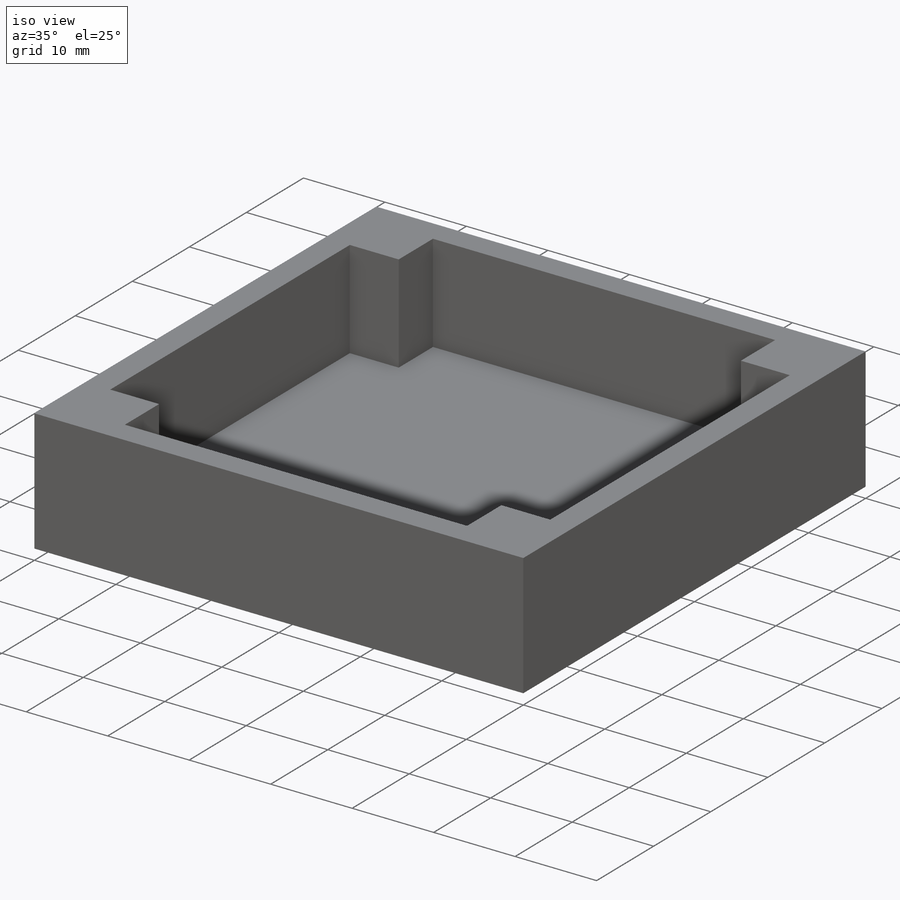
[diagram: iso view]
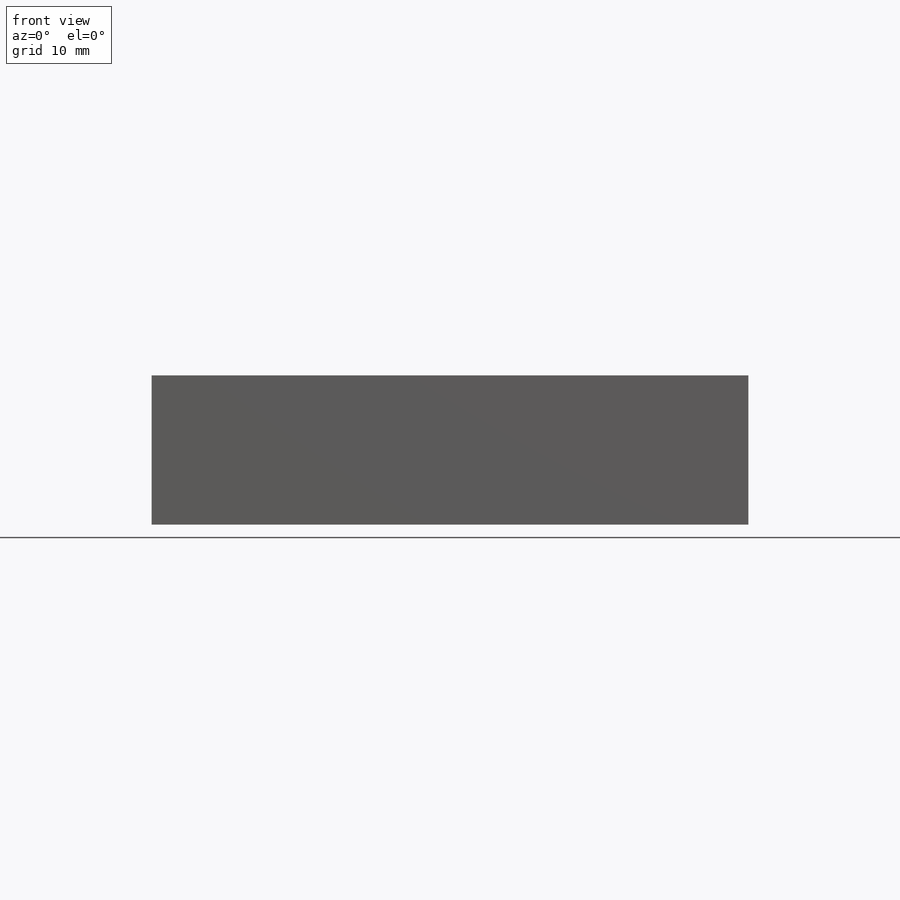
[diagram: front view]
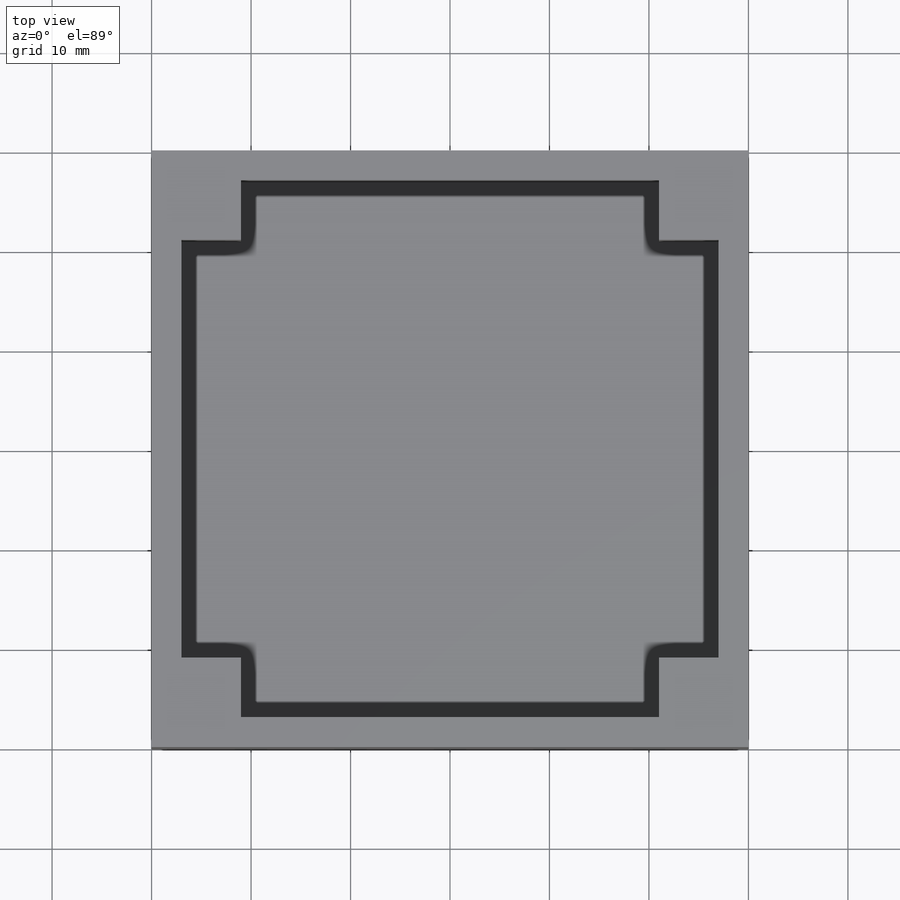
[diagram: top view]
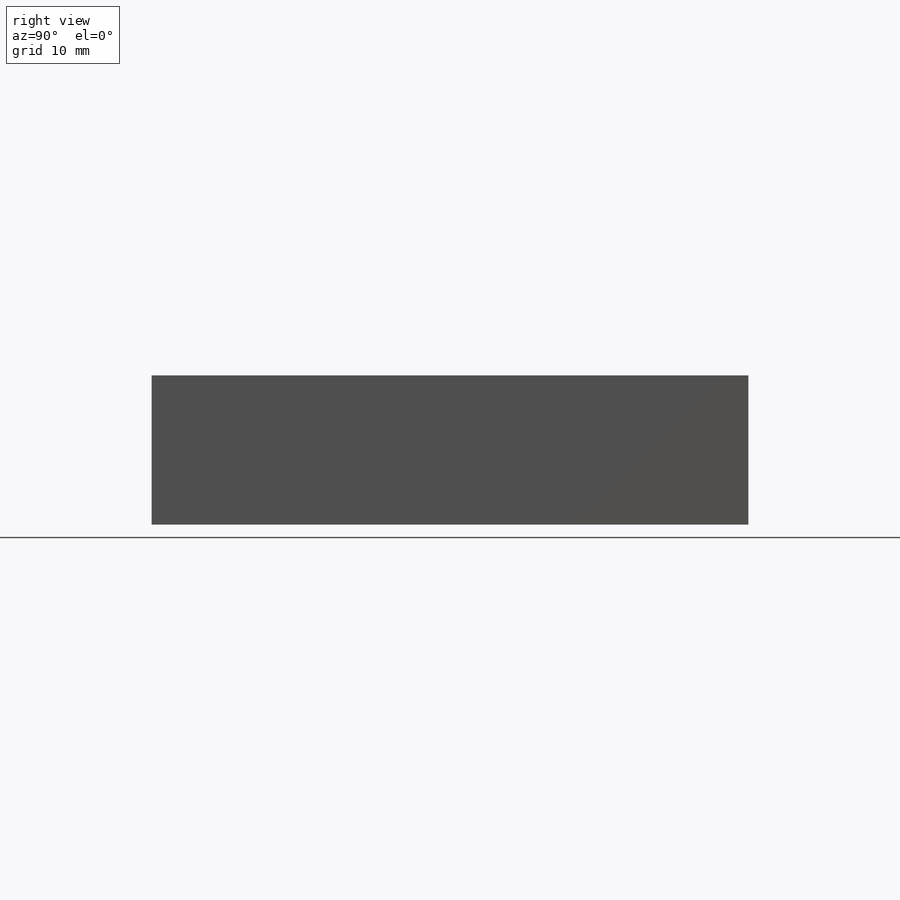
[diagram: right view]
SOLIDWORKS PART (.sldprt)
format: sldprt  version: not decoded by parser v0  size: 151,040 bytes
history: native  units: mm
features: sketch x2, extrude x2, material x1, shell x1, pattern_linear x1 (+11 scaffold rows collapsed)
feature tree (18):
  scaffold x11  (default folders/planes/origin — collapsed)
  material  "PC High Viscosity"
  sketch  "Sketch1"  dims[D1=60.0mm]
  extrude  "Boss-Extrude1"  Depth=15mm
  shell  "Shell1"  Thickness=3mm
  sketch  "Sketch2"  dims[D1=6.0mm]
  extrude  "Boss-Extrude2"  [1 undecoded]
  pattern_linear  "LPattern1"  Count1=2 Count2=2 Spacing1=48mm Spacing2=48mm
decode coverage: 5 of 6 modeling features carry decoded parameters
note: 1 parameter value undecoded
note: suppression state not decoded; provenance and decode notes live in map.json
